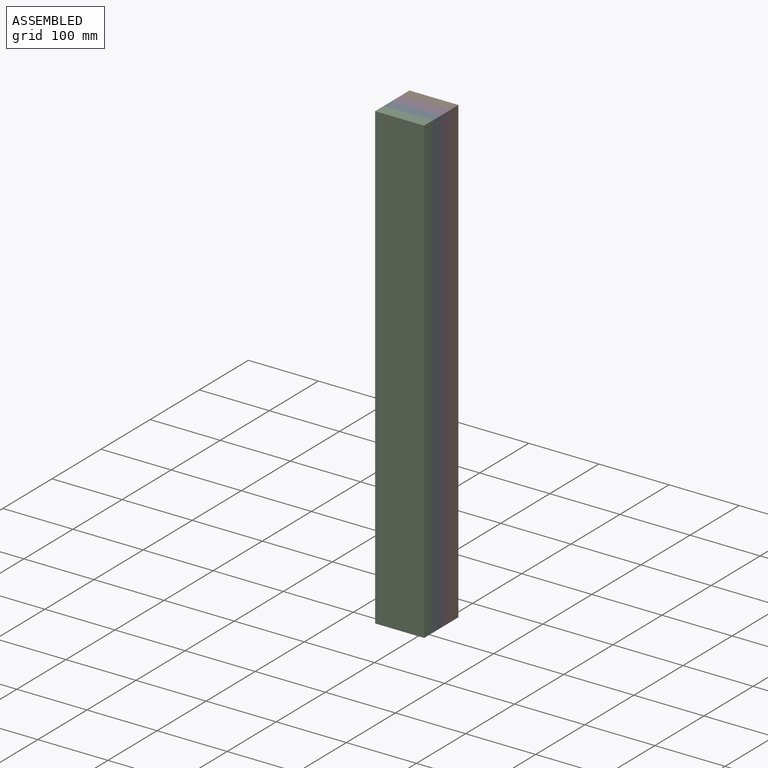
[diagram: assembled view]
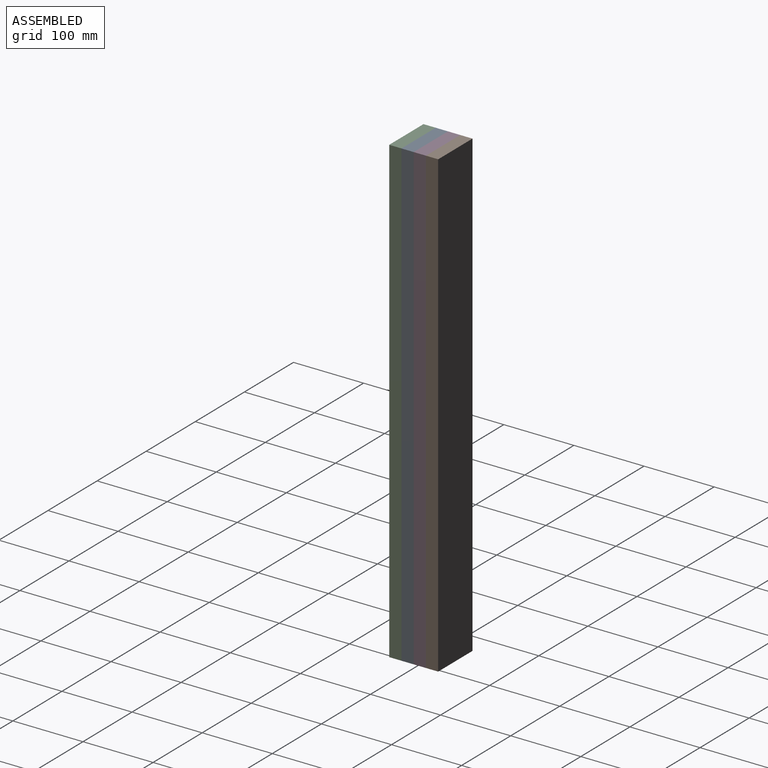
[diagram: assembled view, second angle]
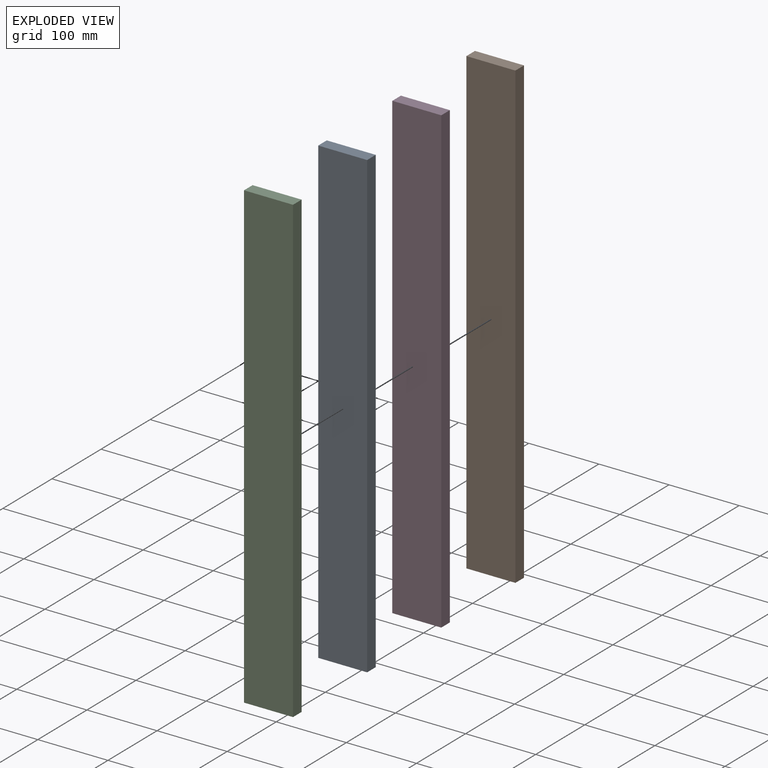
[diagram: exploded view]
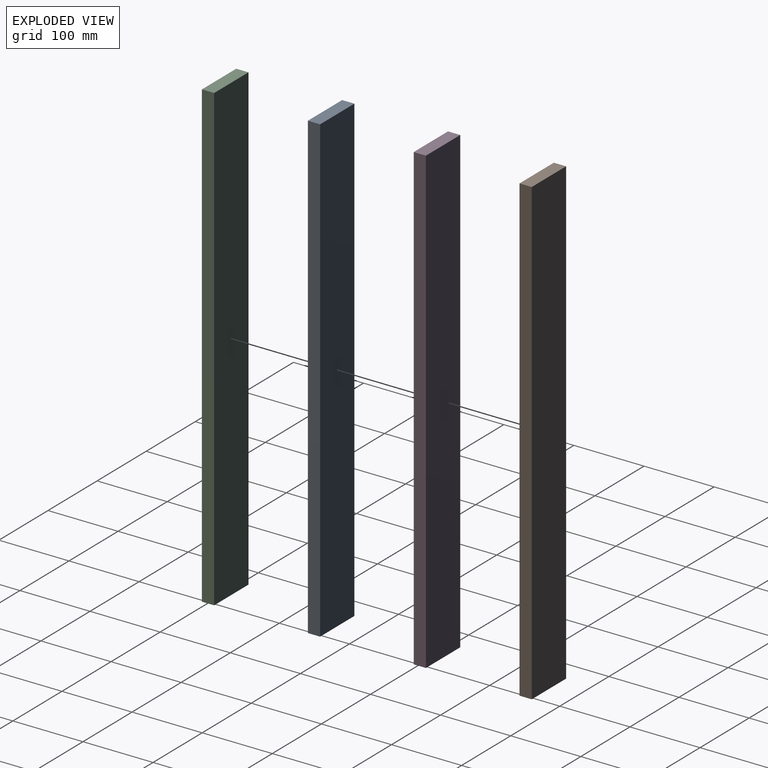
[diagram: exploded view, second angle]
ASSEMBLY  parts=4 mates=3
PART A: 6 faces, bbox 69.9x17.5x660.4 mm
  f0: plane 69.85x17.46mm, normal (0,0,1), area 1219.8mm2, adj f1,f3,f4,f5
  f1: plane 660.4x17.46mm, normal (-1,0,0), area 11532.2mm2, adj f0,f2,f4,f5
  f2: plane 69.85x17.46mm, normal (0,0,-1), area 1219.8mm2, adj f1,f3,f4,f5
  f3: plane 660.4x17.46mm, normal (1,0,0), area 11532.2mm2, adj f0,f2,f4,f5
  f4: plane 660.4x69.85mm, normal (0,-1,0), area 46128.9mm2, adj f0,f1,f2,f3
  f5: plane 660.4x69.85mm, normal (0,1,0), area 46128.9mm2, adj f0,f1,f2,f3
PART B: same geometry as A
PART C: same geometry as A
PART D: same geometry as A
PLACE A t=(-48.92,-193.66,57.02)mm
PLACE B t=(-48.92,-158.74,57.02)mm
PLACE C t=(-48.92,-211.13,57.02)mm
PLACE D t=(-48.92,-176.2,57.02)mm
MATE fastened B.f4 <-> D.f5  axis (0,-1,0) through (20.93,-176.2,57.02)mm
MATE fastened D.f4 <-> A.f5  axis (0,-1,0) through (20.93,-193.66,57.02)mm
MATE fastened A.f4 <-> C.f5  axis (0,-1,0) through (20.93,-211.13,57.02)mm
